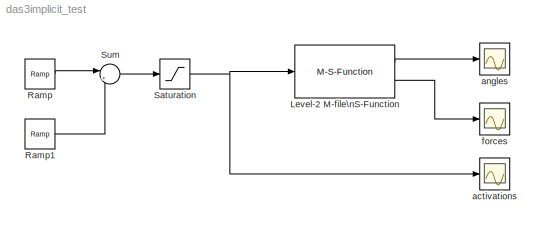
MODEL das3implicit_test
KIND model
BLOCK [M-S-Function] Level-2 M-file\nS-Function
  FunctionName = das3implicit_sim
  Ports = [1, 2]
  SID = 12
BLOCK [Reference] Ramp  REF=simulink/Sources/Ramp
  FunctionWithSeparateData = off
  Ports = [0, 1]
  RTWMemSecDataConstants = Inherit from model
  RTWMemSecDataInternal = Inherit from model
  RTWMemSecDataParameters = Inherit from model
  RTWMemSecFuncExecute = Inherit from model
  RTWMemSecFuncInitTerm = Inherit from model
  SID = 5
  ShowPortLabels = FromPortIcon
  SourceBlock = simulink/Sources/Ramp
  SourceType = Ramp
  SystemSampleTime = -1
  VectorParams1D = on
  X0 = zeros(138,1)
  slope = 5
  start = 0
BLOCK [Reference] Ramp1  REF=simulink/Sources/Ramp
  FunctionWithSeparateData = off
  Ports = [0, 1]
  RTWMemSecDataConstants = Inherit from model
  RTWMemSecDataInternal = Inherit from model
  RTWMemSecDataParameters = Inherit from model
  RTWMemSecFuncExecute = Inherit from model
  RTWMemSecFuncInitTerm = Inherit from model
  SID = 8
  ShowPortLabels = FromPortIcon
  SourceBlock = simulink/Sources/Ramp
  SourceType = Ramp
  SystemSampleTime = -1
  VectorParams1D = on
  X0 = zeros(138,1)
  slope = 10000
  start = 2
BLOCK [Saturate] Saturation
  LowerLimit = 0
  SID = 6
  UpperLimit = 1
BLOCK [Sum] Sum
  IconShape = round
  InputSameDT = off
  Inputs = |+-
  OutDataType = fixdt(1, 16)
  OutDataTypeMode = Inherit via internal rule
  OutDataTypeStr = Inherit: Inherit via internal rule
  OutScaling = 2^0
  Ports = [2, 1]
  SID = 10
  SaturateOnIntegerOverflow = off
BLOCK [Scope] activations
  DataFormat = StructureWithTime
  Floating = off
  LimitDataPoints = off
  NumInputPorts = 1
  Ports = [1]
  SID = 11
  SampleTime = 0
  SaveName = ScopeData2
BLOCK [Scope] angles
  DataFormat = Array
  Floating = off
  LimitDataPoints = off
  NumInputPorts = 1
  Ports = [1]
  SID = 2
  SampleTime = 0
  SaveName = angles
  SaveToWorkspace = on
  YMax = 2
  YMin = -0.5
  ZoomMode = yonly
BLOCK [Scope] forces
  DataFormat = Array
  Floating = off
  LimitDataPoints = off
  NumInputPorts = 1
  Ports = [1]
  SID = 3
  SampleTime = 0
  SaveName = forces
  SaveToWorkspace = on
  YMax = 2000
  YMin = -250
  ZoomMode = xonly
LINE Level-2 M-file\nS-Function:1 -> angles:1
LINE Level-2 M-file\nS-Function:2 -> forces:1
LINE Ramp1:1 -> Sum:2
LINE Ramp:1 -> Sum:1
NET Saturation:1 -> Level-2 M-file\nS-Function:1, activations:1
LINE Sum:1 -> Saturation:1
note: NET lines group one-source signal fan-out (src -> all destinations, sorted); 1:1 wires keep LINE
